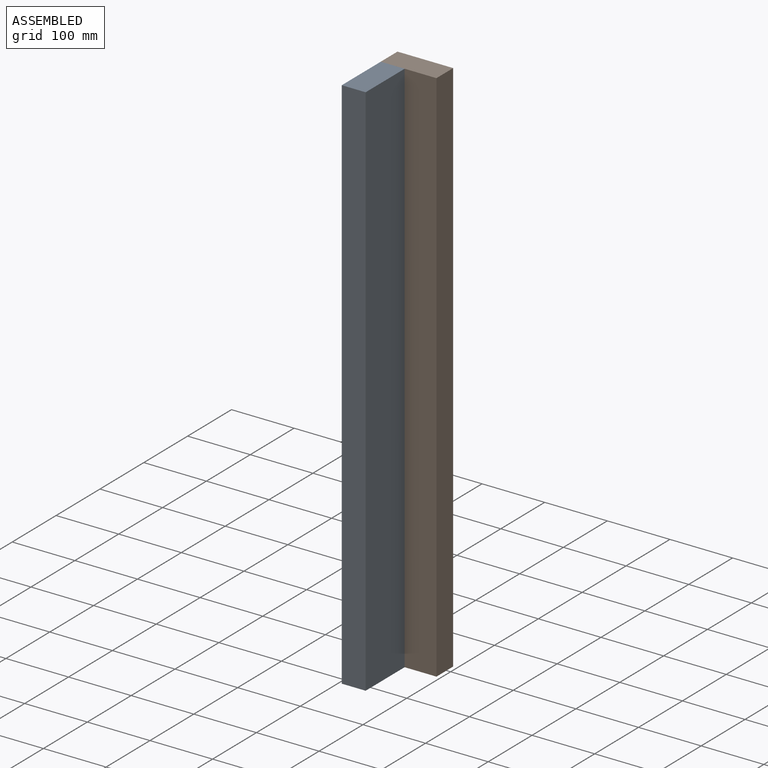
[diagram: assembled view]
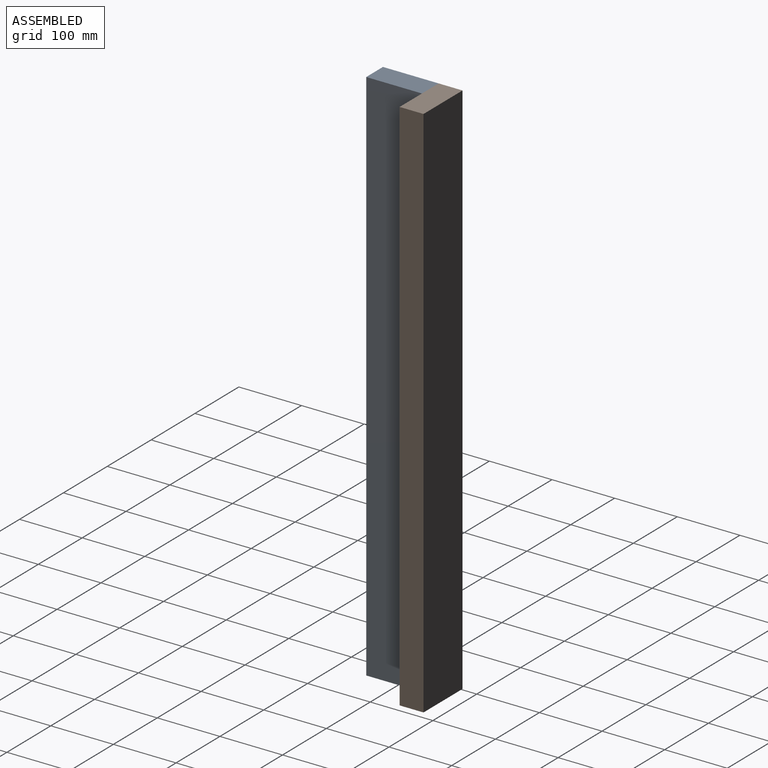
[diagram: assembled view, second angle]
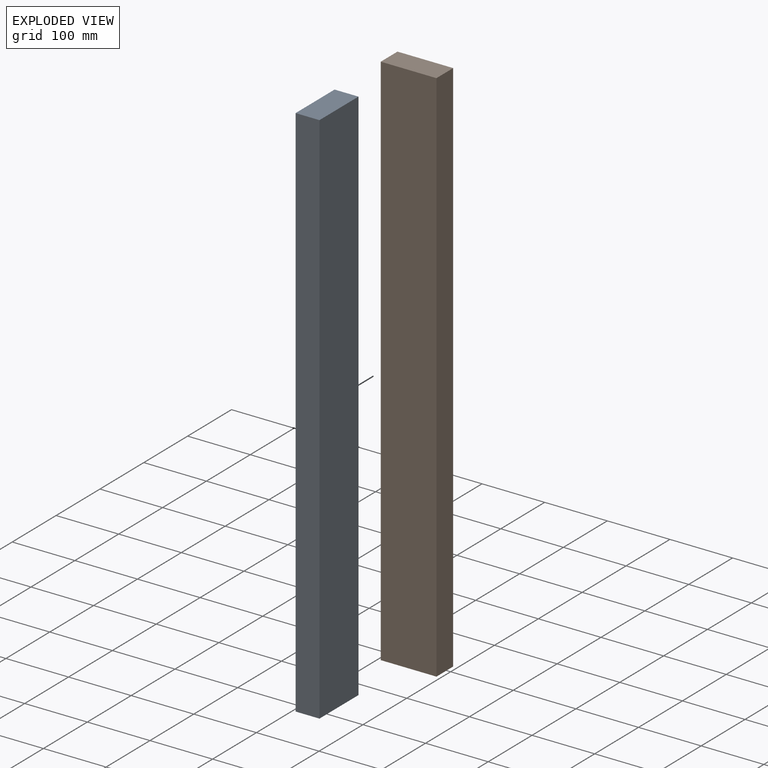
[diagram: exploded view]
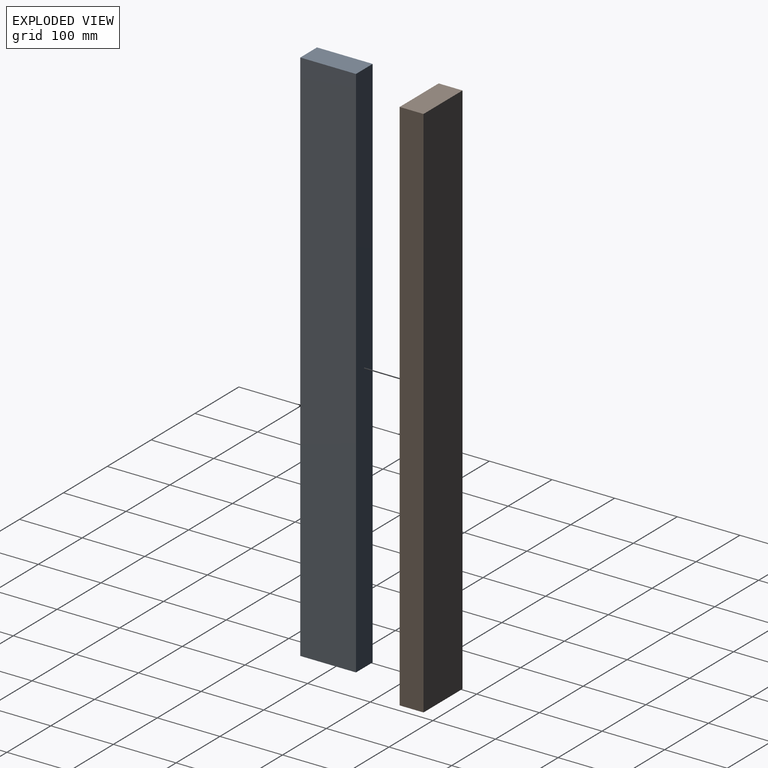
[diagram: exploded view, second angle]
ASSEMBLY  parts=2 mates=3
PART A: 6 faces, bbox 88.9x38.1x863.6 mm
  f0: plane 863.6x38.1mm, normal (1,0,0), area 32903.2mm2, adj f1,f3,f4,f5
  f1: plane 863.6x88.9mm, normal (0,1,0), area 76774mm2, adj f0,f2,f4,f5
  f2: plane 863.6x38.1mm, normal (-1,0,0), area 32903.2mm2, adj f1,f3,f4,f5
  f3: plane 863.6x88.9mm, normal (0,-1,0), area 76774mm2, adj f0,f2,f4,f5
  f4: plane 88.9x38.1mm, normal (0,0,1), area 3387.1mm2, adj f0,f1,f2,f3
  f5: plane 88.9x38.1mm, normal (0,0,-1), area 3387.1mm2, adj f0,f1,f2,f3
PART B: same geometry as A
PLACE A rot(axis=(0,0,1),90deg) t=(-460.12,-90.62,-64.48)mm
PLACE B t=(-434.72,-27.12,-64.48)mm
MATE planar A.f0 <-> B.f3  axis (0,1,0) through (-460.12,-46.17,367.32)mm
MATE planar B.f2 <-> A.f1  axis (-1,0,0) through (-479.17,-27.12,367.32)mm
MATE planar A.f4 <-> B.f4  axis (0,0,1) through (-460.12,-90.62,799.12)mm
